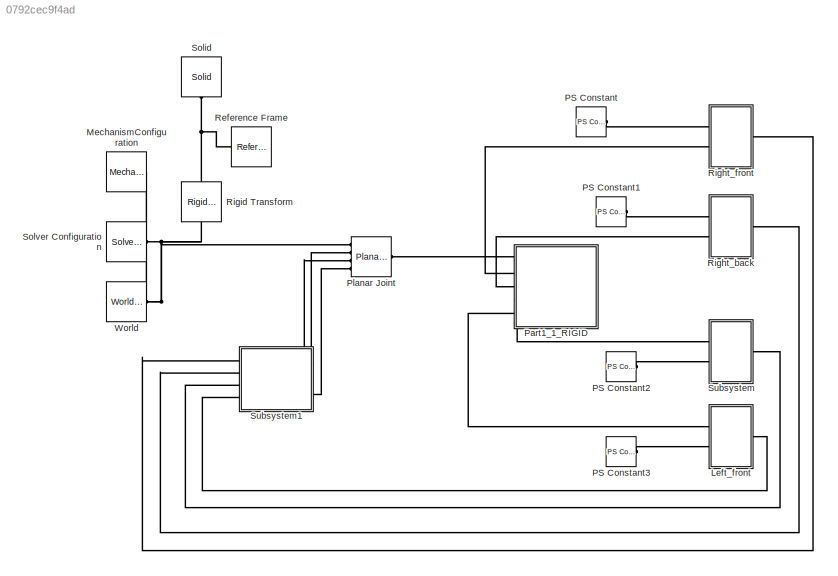
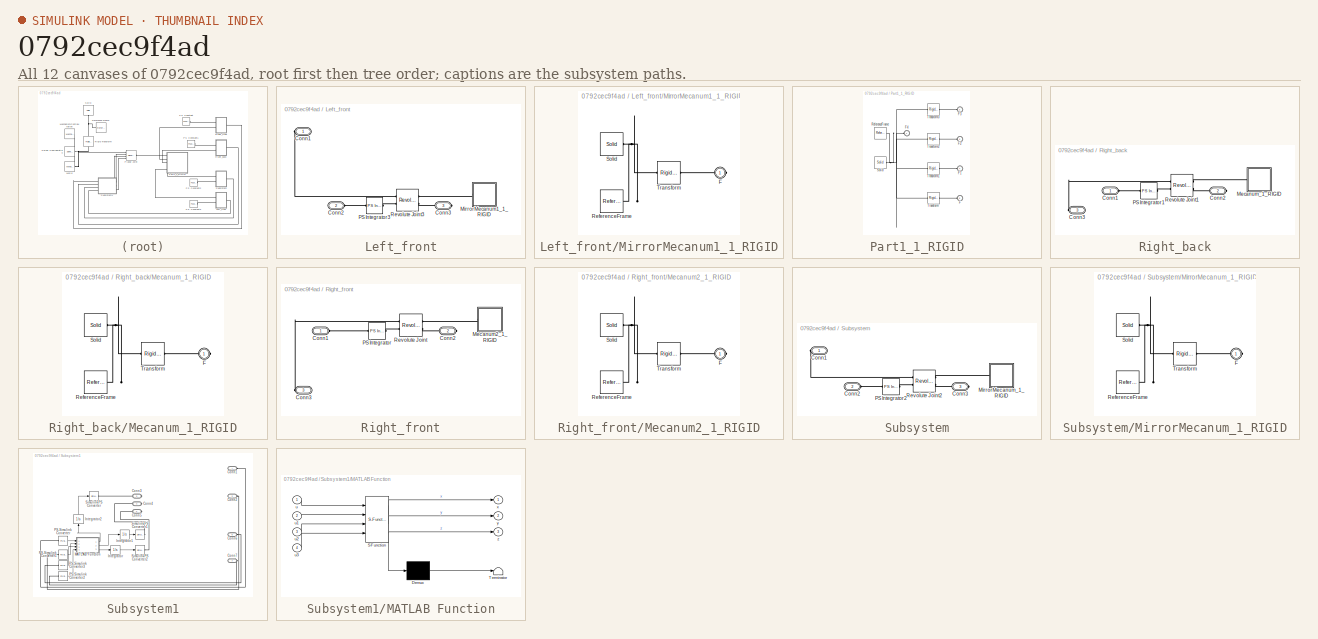
[diagram: thumbnail index - all 12 canvases of the model, root first then tree order]
MODEL slx_0792cec9f4ad
KIND model
CONFIG AbsTol = auto
CONFIG EnableMultiTasking = off
CONFIG FixedStep = auto
CONFIG MaxStep = auto
CONFIG MinStep = auto
CONFIG RelTol = 1e-3
CONFIG SampleTimeConstraint = Unconstrained
CONFIG Solver = VariableStepAuto
CONFIG SolverName = VariableStepAuto
CONFIG StartTime = 0.0
CONFIG StopTime = 10.0
WORKSPACE source: external: MATLAB File  (data not in archive)
BLOCK [SubSystem] Left_front
  Ports = [0, 0, 0, 0, 0, 2, 1]
  RequestExecContextInheritance = off
BLOCK [PMIOPort] Left_front/Conn1
  Side = Left
BLOCK [PMIOPort] Left_front/Conn2
  Port = 2
  Side = Left
BLOCK [PMIOPort] Left_front/Conn3
  Port = 3
  Side = Right
BLOCK [SubSystem] Left_front/MirrorMecanum1_1_RIGID
  Ports = [0, 0, 0, 0, 0, 0, 1]
  RequestExecContextInheritance = off
BLOCK [PMIOPort] Left_front/MirrorMecanum1_1_RIGID/F
  Side = Right
BLOCK [Reference] Left_front/MirrorMecanum1_1_RIGID/ReferenceFrame  REF=sm_lib/Frames and
Transforms/Reference
Frame
  Ports = [0, 0, 0, 0, 0, 0, 1]
  SourceBlock = sm_lib/Frames and\nTransforms/Reference\nFrame
  SourceProductBaseCode = MS
  SourceProductName = Simscape Multibody
  SourceType = Reference\nFrame
BLOCK [Reference] Left_front/MirrorMecanum1_1_RIGID/Solid  REF=sm_lib/Body Elements/Solid
  Ports = [0, 0, 0, 0, 0, 0, 1]
  SourceBlock = sm_lib/Body Elements/Solid
  SourceProductBaseCode = MS
  SourceProductName = Simscape Multibody
  SourceType = Solid
BLOCK [Reference] Left_front/MirrorMecanum1_1_RIGID/Transform  REF=sm_lib/Frames and
Transforms/Rigid
Transform
  Ports = [0, 0, 0, 0, 0, 1, 1]
  SourceBlock = sm_lib/Frames and\nTransforms/Rigid\nTransform
  SourceProductBaseCode = MS
  SourceProductName = Simscape Multibody
  SourceType = Rigid\nTransform
BLOCK [Reference] Left_front/PS Integrator3  REF=fl_ps_legacy_lib/Legacy Physical
Signals/Linear Operators/PS Integrator
  Ports = [0, 0, 0, 0, 0, 1, 1]
  SourceBlock = fl_ps_legacy_lib/Legacy Physical\nSignals/Linear Operators/PS Integrator
  SourceProductBaseCode = SS
  SourceProductName = Simscape
  SourceType = PS Integrator
BLOCK [Reference] Left_front/Revolute Joint3  REF=sm_lib/Joints/Revolute Joint
  Ports = [0, 0, 0, 0, 0, 2, 2]
  SourceBlock = sm_lib/Joints/Revolute Joint
  SourceProductBaseCode = MS
  SourceProductName = Simscape Multibody
  SourceType = Revolute Joint
BLOCK [Reference] MechanismConfiguration  REF=sm_lib/Utilities/Mechanism
Configuration
  Ports = [0, 0, 0, 0, 0, 0, 1]
  SourceBlock = sm_lib/Utilities/Mechanism\nConfiguration
  SourceProductBaseCode = MS
  SourceProductName = Simscape Multibody
  SourceType = Mechanism\nConfiguration
BLOCK [Reference] PS Constant  REF=fl_lib/Physical Signals/Sources/PS Constant
  Ports = [0, 0, 0, 0, 0, 0, 1]
  SourceBlock = fl_lib/Physical Signals/Sources/PS Constant
  SourceProductBaseCode = SS
  SourceProductName = Simscape
  SourceType = PS Constant
BLOCK [Reference] PS Constant1  REF=fl_lib/Physical Signals/Sources/PS Constant
  Ports = [0, 0, 0, 0, 0, 0, 1]
  SourceBlock = fl_lib/Physical Signals/Sources/PS Constant
  SourceProductBaseCode = SS
  SourceProductName = Simscape
  SourceType = PS Constant
BLOCK [Reference] PS Constant2  REF=fl_lib/Physical Signals/Sources/PS Constant
  Ports = [0, 0, 0, 0, 0, 0, 1]
  SourceBlock = fl_lib/Physical Signals/Sources/PS Constant
  SourceProductBaseCode = SS
  SourceProductName = Simscape
  SourceType = PS Constant
BLOCK [Reference] PS Constant3  REF=fl_lib/Physical Signals/Sources/PS Constant
  Ports = [0, 0, 0, 0, 0, 0, 1]
  SourceBlock = fl_lib/Physical Signals/Sources/PS Constant
  SourceProductBaseCode = SS
  SourceProductName = Simscape
  SourceType = PS Constant
BLOCK [SubSystem] Part1_1_RIGID
  Ports = [0, 0, 0, 0, 0, 5]
  RequestExecContextInheritance = off
BLOCK [PMIOPort] Part1_1_RIGID/F
  Port = 5
  Side = Left
BLOCK [PMIOPort] Part1_1_RIGID/F1
  Port = 4
  Side = Left
BLOCK [PMIOPort] Part1_1_RIGID/F2
  Port = 3
  Side = Left
BLOCK [PMIOPort] Part1_1_RIGID/F3
  Port = 2
  Side = Left
BLOCK [PMIOPort] Part1_1_RIGID/F4
  Side = Left
BLOCK [Reference] Part1_1_RIGID/ReferenceFrame  REF=sm_lib/Frames and
Transforms/Reference
Frame
  Ports = [0, 0, 0, 0, 0, 0, 1]
  SourceBlock = sm_lib/Frames and\nTransforms/Reference\nFrame
  SourceProductBaseCode = MS
  SourceProductName = Simscape Multibody
  SourceType = Reference\nFrame
BLOCK [Reference] Part1_1_RIGID/Solid  REF=sm_lib/Body Elements/Solid
  Ports = [0, 0, 0, 0, 0, 0, 1]
  SourceBlock = sm_lib/Body Elements/Solid
  SourceProductBaseCode = MS
  SourceProductName = Simscape Multibody
  SourceType = Solid
BLOCK [Reference] Part1_1_RIGID/Transform  REF=sm_lib/Frames and
Transforms/Rigid
Transform
  Ports = [0, 0, 0, 0, 0, 1, 1]
  SourceBlock = sm_lib/Frames and\nTransforms/Rigid\nTransform
  SourceProductBaseCode = MS
  SourceProductName = Simscape Multibody
  SourceType = Rigid\nTransform
BLOCK [Reference] Part1_1_RIGID/Transform1  REF=sm_lib/Frames and
Transforms/Rigid
Transform
  Ports = [0, 0, 0, 0, 0, 1, 1]
  SourceBlock = sm_lib/Frames and\nTransforms/Rigid\nTransform
  SourceProductBaseCode = MS
  SourceProductName = Simscape Multibody
  SourceType = Rigid\nTransform
BLOCK [Reference] Part1_1_RIGID/Transform2  REF=sm_lib/Frames and
Transforms/Rigid
Transform
  Ports = [0, 0, 0, 0, 0, 1, 1]
  SourceBlock = sm_lib/Frames and\nTransforms/Rigid\nTransform
  SourceProductBaseCode = MS
  SourceProductName = Simscape Multibody
  SourceType = Rigid\nTransform
BLOCK [Reference] Part1_1_RIGID/Transform3  REF=sm_lib/Frames and
Transforms/Rigid
Transform
  Ports = [0, 0, 0, 0, 0, 1, 1]
  SourceBlock = sm_lib/Frames and\nTransforms/Rigid\nTransform
  SourceProductBaseCode = MS
  SourceProductName = Simscape Multibody
  SourceType = Rigid\nTransform
BLOCK [Reference] Planar Joint  REF=sm_lib/Joints/Planar Joint
  Ports = [0, 0, 0, 0, 0, 4, 1]
  SourceBlock = sm_lib/Joints/Planar Joint
  SourceProductBaseCode = MS
  SourceProductName = Simscape Multibody
  SourceType = Planar Joint
BLOCK [Reference] Reference Frame  REF=sm_lib/Frames and
Transforms/Reference
Frame
  Ports = [0, 0, 0, 0, 0, 0, 1]
  SourceBlock = sm_lib/Frames and\nTransforms/Reference\nFrame
  SourceProductBaseCode = MS
  SourceProductName = Simscape Multibody
  SourceType = Reference\nFrame
BLOCK [SubSystem] Right_back
  Ports = [0, 0, 0, 0, 0, 2, 1]
  RequestExecContextInheritance = off
BLOCK [PMIOPort] Right_back/Conn1
  Side = Left
BLOCK [PMIOPort] Right_back/Conn2
  Port = 2
  Side = Right
BLOCK [PMIOPort] Right_back/Conn3
  Port = 3
  Side = Left
BLOCK [SubSystem] Right_back/Mecanum_1_RIGID
  Ports = [0, 0, 0, 0, 0, 0, 1]
  RequestExecContextInheritance = off
BLOCK [PMIOPort] Right_back/Mecanum_1_RIGID/F
  Side = Right
BLOCK [Reference] Right_back/Mecanum_1_RIGID/ReferenceFrame  REF=sm_lib/Frames and
Transforms/Reference
Frame
  Ports = [0, 0, 0, 0, 0, 0, 1]
  SourceBlock = sm_lib/Frames and\nTransforms/Reference\nFrame
  SourceProductBaseCode = MS
  SourceProductName = Simscape Multibody
  SourceType = Reference\nFrame
BLOCK [Reference] Right_back/Mecanum_1_RIGID/Solid  REF=sm_lib/Body Elements/Solid
  Ports = [0, 0, 0, 0, 0, 0, 1]
  SourceBlock = sm_lib/Body Elements/Solid
  SourceProductBaseCode = MS
  SourceProductName = Simscape Multibody
  SourceType = Solid
BLOCK [Reference] Right_back/Mecanum_1_RIGID/Transform  REF=sm_lib/Frames and
Transforms/Rigid
Transform
  Ports = [0, 0, 0, 0, 0, 1, 1]
  SourceBlock = sm_lib/Frames and\nTransforms/Rigid\nTransform
  SourceProductBaseCode = MS
  SourceProductName = Simscape Multibody
  SourceType = Rigid\nTransform
BLOCK [Reference] Right_back/PS Integrator1  REF=fl_ps_legacy_lib/Legacy Physical
Signals/Linear Operators/PS Integrator
  Ports = [0, 0, 0, 0, 0, 1, 1]
  SourceBlock = fl_ps_legacy_lib/Legacy Physical\nSignals/Linear Operators/PS Integrator
  SourceProductBaseCode = SS
  SourceProductName = Simscape
  SourceType = PS Integrator
BLOCK [Reference] Right_back/Revolute Joint1  REF=sm_lib/Joints/Revolute Joint
  Ports = [0, 0, 0, 0, 0, 2, 2]
  SourceBlock = sm_lib/Joints/Revolute Joint
  SourceProductBaseCode = MS
  SourceProductName = Simscape Multibody
  SourceType = Revolute Joint
BLOCK [SubSystem] Right_front
  Ports = [0, 0, 0, 0, 0, 2, 1]
  RequestExecContextInheritance = off
BLOCK [PMIOPort] Right_front/Conn1
  Side = Left
BLOCK [PMIOPort] Right_front/Conn2
  Port = 2
  Side = Right
BLOCK [PMIOPort] Right_front/Conn3
  Port = 3
  Side = Left
BLOCK [SubSystem] Right_front/Mecanum2_1_RIGID
  Ports = [0, 0, 0, 0, 0, 0, 1]
  RequestExecContextInheritance = off
BLOCK [PMIOPort] Right_front/Mecanum2_1_RIGID/F
  Side = Right
BLOCK [Reference] Right_front/Mecanum2_1_RIGID/ReferenceFrame  REF=sm_lib/Frames and
Transforms/Reference
Frame
  Ports = [0, 0, 0, 0, 0, 0, 1]
  SourceBlock = sm_lib/Frames and\nTransforms/Reference\nFrame
  SourceProductBaseCode = MS
  SourceProductName = Simscape Multibody
  SourceType = Reference\nFrame
BLOCK [Reference] Right_front/Mecanum2_1_RIGID/Solid  REF=sm_lib/Body Elements/Solid
  Ports = [0, 0, 0, 0, 0, 0, 1]
  SourceBlock = sm_lib/Body Elements/Solid
  SourceProductBaseCode = MS
  SourceProductName = Simscape Multibody
  SourceType = Solid
BLOCK [Reference] Right_front/Mecanum2_1_RIGID/Transform  REF=sm_lib/Frames and
Transforms/Rigid
Transform
  Ports = [0, 0, 0, 0, 0, 1, 1]
  SourceBlock = sm_lib/Frames and\nTransforms/Rigid\nTransform
  SourceProductBaseCode = MS
  SourceProductName = Simscape Multibody
  SourceType = Rigid\nTransform
BLOCK [Reference] Right_front/PS Integrator  REF=fl_ps_legacy_lib/Legacy Physical
Signals/Linear Operators/PS Integrator
  Ports = [0, 0, 0, 0, 0, 1, 1]
  SourceBlock = fl_ps_legacy_lib/Legacy Physical\nSignals/Linear Operators/PS Integrator
  SourceProductBaseCode = SS
  SourceProductName = Simscape
  SourceType = PS Integrator
BLOCK [Reference] Right_front/Revolute Joint  REF=sm_lib/Joints/Revolute Joint
  Ports = [0, 0, 0, 0, 0, 2, 2]
  SourceBlock = sm_lib/Joints/Revolute Joint
  SourceProductBaseCode = MS
  SourceProductName = Simscape Multibody
  SourceType = Revolute Joint
BLOCK [Reference] Rigid Transform  REF=sm_lib/Frames and
Transforms/Rigid
Transform
  Ports = [0, 0, 0, 0, 0, 1, 1]
  SourceBlock = sm_lib/Frames and\nTransforms/Rigid\nTransform
  SourceProductBaseCode = MS
  SourceProductName = Simscape Multibody
  SourceType = Rigid\nTransform
BLOCK [Reference] Solid  REF=sm_lib/Body Elements/Solid
  Ports = [0, 0, 0, 0, 0, 0, 1]
  SourceBlock = sm_lib/Body Elements/Solid
  SourceProductBaseCode = MS
  SourceProductName = Simscape Multibody
  SourceType = Solid
BLOCK [Reference] Solver Configuration  REF=nesl_utility/Solver
Configuration
  Ports = [0, 0, 0, 0, 0, 0, 1]
  SourceBlock = nesl_utility/Solver\nConfiguration
  SourceProductBaseCode = SS
  SourceProductName = Simscape
  SourceType = Solver\nConfiguration
BLOCK [SubSystem] Subsystem
  Ports = [0, 0, 0, 0, 0, 2, 1]
  RequestExecContextInheritance = off
BLOCK [PMIOPort] Subsystem/Conn1
  Side = Left
BLOCK [PMIOPort] Subsystem/Conn2
  Port = 2
  Side = Left
BLOCK [PMIOPort] Subsystem/Conn3
  Port = 3
  Side = Right
BLOCK [SubSystem] Subsystem/MirrorMecanum_1_RIGID
  Ports = [0, 0, 0, 0, 0, 0, 1]
  RequestExecContextInheritance = off
BLOCK [PMIOPort] Subsystem/MirrorMecanum_1_RIGID/F
  Side = Right
BLOCK [Reference] Subsystem/MirrorMecanum_1_RIGID/ReferenceFrame  REF=sm_lib/Frames and
Transforms/Reference
Frame
  Ports = [0, 0, 0, 0, 0, 0, 1]
  SourceBlock = sm_lib/Frames and\nTransforms/Reference\nFrame
  SourceProductBaseCode = MS
  SourceProductName = Simscape Multibody
  SourceType = Reference\nFrame
BLOCK [Reference] Subsystem/MirrorMecanum_1_RIGID/Solid  REF=sm_lib/Body Elements/Solid
  Ports = [0, 0, 0, 0, 0, 0, 1]
  SourceBlock = sm_lib/Body Elements/Solid
  SourceProductBaseCode = MS
  SourceProductName = Simscape Multibody
  SourceType = Solid
BLOCK [Reference] Subsystem/MirrorMecanum_1_RIGID/Transform  REF=sm_lib/Frames and
Transforms/Rigid
Transform
  Ports = [0, 0, 0, 0, 0, 1, 1]
  SourceBlock = sm_lib/Frames and\nTransforms/Rigid\nTransform
  SourceProductBaseCode = MS
  SourceProductName = Simscape Multibody
  SourceType = Rigid\nTransform
BLOCK [Reference] Subsystem/PS Integrator2  REF=fl_ps_legacy_lib/Legacy Physical
Signals/Linear Operators/PS Integrator
  Ports = [0, 0, 0, 0, 0, 1, 1]
  SourceBlock = fl_ps_legacy_lib/Legacy Physical\nSignals/Linear Operators/PS Integrator
  SourceProductBaseCode = SS
  SourceProductName = Simscape
  SourceType = PS Integrator
BLOCK [Reference] Subsystem/Revolute Joint2  REF=sm_lib/Joints/Revolute Joint
  Ports = [0, 0, 0, 0, 0, 2, 2]
  SourceBlock = sm_lib/Joints/Revolute Joint
  SourceProductBaseCode = MS
  SourceProductName = Simscape Multibody
  SourceType = Revolute Joint
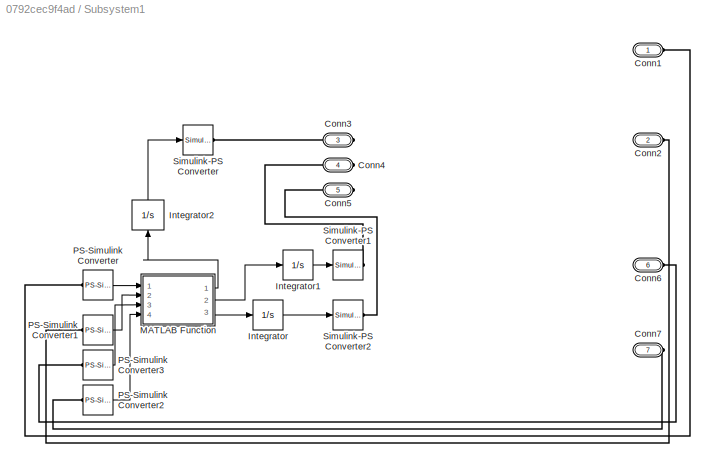
BLOCK [SubSystem] Subsystem1
  Ports = [0, 0, 0, 0, 0, 4, 3]
  RequestExecContextInheritance = off
BLOCK [PMIOPort] Subsystem1/Conn1
  Side = Left
BLOCK [PMIOPort] Subsystem1/Conn2
  Port = 2
  Side = Left
BLOCK [PMIOPort] Subsystem1/Conn3
  Port = 3
  Side = Right
BLOCK [PMIOPort] Subsystem1/Conn4
  Port = 4
  Side = Right
BLOCK [PMIOPort] Subsystem1/Conn5
  Port = 5
  Side = Right
BLOCK [PMIOPort] Subsystem1/Conn6
  Port = 6
  Side = Left
BLOCK [PMIOPort] Subsystem1/Conn7
  Port = 7
  Side = Left
BLOCK [Integrator] Subsystem1/Integrator
  Ports = [1, 1]
BLOCK [Integrator] Subsystem1/Integrator1
  Ports = [1, 1]
BLOCK [Integrator] Subsystem1/Integrator2
  Ports = [1, 1]
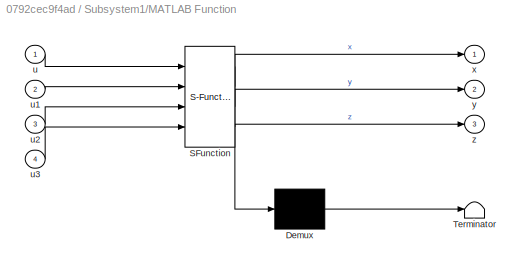
BLOCK [SubSystem] Subsystem1/MATLAB Function
  ErrorFcn = Stateflow.Translate.translate
  PermitHierarchicalResolution = ExplicitOnly
  Ports = [4, 3]
  RequestExecContextInheritance = off
  SFBlockType = MATLAB Function
  TreatAsAtomicUnit = on
BLOCK [Demux] Subsystem1/MATLAB Function/ Demux 
  Outputs = 1
  Ports = [1, 1]
BLOCK [S-Function] Subsystem1/MATLAB Function/ SFunction 
  EnableBusSupport = on
  FunctionName = sf_sfun
  PortCounts = [4 4]
  Ports = [4, 4]
  SFcnIsStateOwnerBlock = off
  SFunctionDeploymentMode = off
  Tag = Stateflow S-Function Base01 2
BLOCK [Terminator] Subsystem1/MATLAB Function/ Terminator 
BLOCK [Inport] Subsystem1/MATLAB Function/u
  IconDisplay = Port number
BLOCK [Inport] Subsystem1/MATLAB Function/u1
  IconDisplay = Port number
  Port = 2
BLOCK [Inport] Subsystem1/MATLAB Function/u2
  IconDisplay = Port number
  Port = 3
BLOCK [Inport] Subsystem1/MATLAB Function/u3
  IconDisplay = Port number
  Port = 4
BLOCK [Outport] Subsystem1/MATLAB Function/x
  IconDisplay = Port number
BLOCK [Outport] Subsystem1/MATLAB Function/y
  IconDisplay = Port number
  Port = 2
BLOCK [Outport] Subsystem1/MATLAB Function/z
  IconDisplay = Port number
  Port = 3
BLOCK [Reference] Subsystem1/PS-Simulink Converter  REF=nesl_utility/PS-Simulink
Converter
  Ports = [0, 1, 0, 0, 0, 1]
  SourceBlock = nesl_utility/PS-Simulink\nConverter
  SourceProductBaseCode = SS
  SourceProductName = Simscape
  SourceType = PS-Simulink\nConverter
BLOCK [Reference] Subsystem1/PS-Simulink Converter1  REF=nesl_utility/PS-Simulink
Converter
  Ports = [0, 1, 0, 0, 0, 1]
  SourceBlock = nesl_utility/PS-Simulink\nConverter
  SourceProductBaseCode = SS
  SourceProductName = Simscape
  SourceType = PS-Simulink\nConverter
BLOCK [Reference] Subsystem1/PS-Simulink Converter2  REF=nesl_utility/PS-Simulink
Converter
  Ports = [0, 1, 0, 0, 0, 1]
  SourceBlock = nesl_utility/PS-Simulink\nConverter
  SourceProductBaseCode = SS
  SourceProductName = Simscape
  SourceType = PS-Simulink\nConverter
BLOCK [Reference] Subsystem1/PS-Simulink Converter3  REF=nesl_utility/PS-Simulink
Converter
  Ports = [0, 1, 0, 0, 0, 1]
  SourceBlock = nesl_utility/PS-Simulink\nConverter
  SourceProductBaseCode = SS
  SourceProductName = Simscape
  SourceType = PS-Simulink\nConverter
BLOCK [Reference] Subsystem1/Simulink-PS Converter  REF=nesl_utility/Simulink-PS
Converter
  Ports = [1, 0, 0, 0, 0, 0, 1]
  SourceBlock = nesl_utility/Simulink-PS\nConverter
  SourceProductBaseCode = SS
  SourceProductName = Simscape
  SourceType = Simulink-PS\nConverter
BLOCK [Reference] Subsystem1/Simulink-PS Converter1  REF=nesl_utility/Simulink-PS
Converter
  Ports = [1, 0, 0, 0, 0, 0, 1]
  SourceBlock = nesl_utility/Simulink-PS\nConverter
  SourceProductBaseCode = SS
  SourceProductName = Simscape
  SourceType = Simulink-PS\nConverter
BLOCK [Reference] Subsystem1/Simulink-PS Converter2  REF=nesl_utility/Simulink-PS
Converter
  Ports = [1, 0, 0, 0, 0, 0, 1]
  SourceBlock = nesl_utility/Simulink-PS\nConverter
  SourceProductBaseCode = SS
  SourceProductName = Simscape
  SourceType = Simulink-PS\nConverter
BLOCK [Reference] World  REF=sm_lib/Frames and
Transforms/World Frame
  Ports = [0, 0, 0, 0, 0, 0, 1]
  SourceBlock = sm_lib/Frames and\nTransforms/World Frame
  SourceProductBaseCode = MS
  SourceProductName = Simscape Multibody
  SourceType = World Frame
LINE Subsystem1/Integrator1:1 -> Subsystem1/Simulink-PS Converter1:1
LINE Subsystem1/Integrator2:1 -> Subsystem1/Simulink-PS Converter:1
LINE Subsystem1/Integrator:1 -> Subsystem1/Simulink-PS Converter2:1
LINE Subsystem1/MATLAB Function:1 -> Subsystem1/Integrator2:1
LINE Subsystem1/MATLAB Function:2 -> Subsystem1/Integrator1:1
LINE Subsystem1/MATLAB Function:3 -> Subsystem1/Integrator:1
LINE Subsystem1/PS-Simulink Converter1:1 -> Subsystem1/MATLAB Function:2
LINE Subsystem1/PS-Simulink Converter2:1 -> Subsystem1/MATLAB Function:4
LINE Subsystem1/PS-Simulink Converter3:1 -> Subsystem1/MATLAB Function:3
LINE Subsystem1/PS-Simulink Converter:1 -> Subsystem1/MATLAB Function:1
PLINE Left_front/Conn1:RConn1 -- Left_front/Revolute Joint3:LConn1
PLINE Left_front/Conn2:RConn1 -- Left_front/PS Integrator3:LConn1
PLINE Left_front/Conn3:RConn1 -- Left_front/Revolute Joint3:RConn2
PLINE Left_front/MirrorMecanum1_1_RIGID/F:RConn1 -- Left_front/MirrorMecanum1_1_RIGID/Transform:RConn1
PNET net1: Left_front/MirrorMecanum1_1_RIGID/ReferenceFrame:RConn1 -- Left_front/MirrorMecanum1_1_RIGID/Solid:RConn1 -- Left_front/MirrorMecanum1_1_RIGID/Transform:LConn1
PLINE Left_front/MirrorMecanum1_1_RIGID:RConn1 -- Left_front/Revolute Joint3:RConn1
PLINE Left_front/PS Integrator3:RConn1 -- Left_front/Revolute Joint3:LConn2
PLINE Left_front:LConn1 -- Part1_1_RIGID:LConn5
PLINE Left_front:LConn2 -- PS Constant3:RConn1
PLINE Left_front:RConn1 -- Subsystem1:LConn4
PNET net2: MechanismConfiguration:RConn1 -- Planar Joint:LConn1 -- Rigid Transform:RConn1 -- Solver Configuration:RConn1 -- World:RConn1
PLINE PS Constant1:RConn1 -- Right_back:LConn1
PLINE PS Constant2:RConn1 -- Subsystem:LConn2
PLINE PS Constant:RConn1 -- Right_front:LConn1
PLINE Part1_1_RIGID/F1:RConn1 -- Part1_1_RIGID/Transform1:RConn1
PLINE Part1_1_RIGID/F2:RConn1 -- Part1_1_RIGID/Transform2:RConn1
PLINE Part1_1_RIGID/F3:RConn1 -- Part1_1_RIGID/Transform3:RConn1
PNET net3: Part1_1_RIGID/F4:RConn1 -- Part1_1_RIGID/ReferenceFrame:RConn1 -- Part1_1_RIGID/Solid:RConn1 -- Part1_1_RIGID/Transform1:LConn1 -- Part1_1_RIGID/Transform2:LConn1 -- Part1_1_RIGID/Transform3:LConn1 -- Part1_1_RIGID/Transform:LConn1
PLINE Part1_1_RIGID/F:RConn1 -- Part1_1_RIGID/Transform:RConn1
PLINE Part1_1_RIGID:LConn1 -- Planar Joint:RConn1
PLINE Part1_1_RIGID:LConn2 -- Right_front:LConn2
PLINE Part1_1_RIGID:LConn3 -- Right_back:LConn2
PLINE Part1_1_RIGID:LConn4 -- Subsystem:LConn1
PLINE Planar Joint:LConn2 -- Subsystem1:RConn1
PLINE Planar Joint:LConn3 -- Subsystem1:RConn2
PLINE Planar Joint:LConn4 -- Subsystem1:RConn3
PNET net4: Reference Frame:RConn1 -- Rigid Transform:LConn1 -- Solid:RConn1
PLINE Right_back/Conn1:RConn1 -- Right_back/PS Integrator1:LConn1
PLINE Right_back/Conn2:RConn1 -- Right_back/Revolute Joint1:RConn2
PLINE Right_back/Conn3:RConn1 -- Right_back/Revolute Joint1:LConn1
PLINE Right_back/Mecanum_1_RIGID/F:RConn1 -- Right_back/Mecanum_1_RIGID/Transform:RConn1
PNET net5: Right_back/Mecanum_1_RIGID/ReferenceFrame:RConn1 -- Right_back/Mecanum_1_RIGID/Solid:RConn1 -- Right_back/Mecanum_1_RIGID/Transform:LConn1
PLINE Right_back/Mecanum_1_RIGID:RConn1 -- Right_back/Revolute Joint1:RConn1
PLINE Right_back/PS Integrator1:RConn1 -- Right_back/Revolute Joint1:LConn2
PLINE Right_back:RConn1 -- Subsystem1:LConn2
PLINE Right_front/Conn1:RConn1 -- Right_front/PS Integrator:LConn1
PLINE Right_front/Conn2:RConn1 -- Right_front/Revolute Joint:RConn2
PLINE Right_front/Conn3:RConn1 -- Right_front/Revolute Joint:LConn1
PLINE Right_front/Mecanum2_1_RIGID/F:RConn1 -- Right_front/Mecanum2_1_RIGID/Transform:RConn1
PNET net6: Right_front/Mecanum2_1_RIGID/ReferenceFrame:RConn1 -- Right_front/Mecanum2_1_RIGID/Solid:RConn1 -- Right_front/Mecanum2_1_RIGID/Transform:LConn1
PLINE Right_front/Mecanum2_1_RIGID:RConn1 -- Right_front/Revolute Joint:RConn1
PLINE Right_front/PS Integrator:RConn1 -- Right_front/Revolute Joint:LConn2
PLINE Right_front:RConn1 -- Subsystem1:LConn1
PLINE Subsystem/Conn1:RConn1 -- Subsystem/Revolute Joint2:LConn1
PLINE Subsystem/Conn2:RConn1 -- Subsystem/PS Integrator2:LConn1
PLINE Subsystem/Conn3:RConn1 -- Subsystem/Revolute Joint2:RConn2
PLINE Subsystem/MirrorMecanum_1_RIGID/F:RConn1 -- Subsystem/MirrorMecanum_1_RIGID/Transform:RConn1
PNET net7: Subsystem/MirrorMecanum_1_RIGID/ReferenceFrame:RConn1 -- Subsystem/MirrorMecanum_1_RIGID/Solid:RConn1 -- Subsystem/MirrorMecanum_1_RIGID/Transform:LConn1
PLINE Subsystem/MirrorMecanum_1_RIGID:RConn1 -- Subsystem/Revolute Joint2:RConn1
PLINE Subsystem/PS Integrator2:RConn1 -- Subsystem/Revolute Joint2:LConn2
PLINE Subsystem1/Conn1:RConn1 -- Subsystem1/PS-Simulink Converter:LConn1
PLINE Subsystem1/Conn2:RConn1 -- Subsystem1/PS-Simulink Converter1:LConn1
PLINE Subsystem1/Conn3:RConn1 -- Subsystem1/Simulink-PS Converter:RConn1
PLINE Subsystem1/Conn4:RConn1 -- Subsystem1/Simulink-PS Converter1:RConn1
PLINE Subsystem1/Conn5:RConn1 -- Subsystem1/Simulink-PS Converter2:RConn1
PLINE Subsystem1/Conn6:RConn1 -- Subsystem1/PS-Simulink Converter3:LConn1
PLINE Subsystem1/Conn7:RConn1 -- Subsystem1/PS-Simulink Converter2:LConn1
PLINE Subsystem1:LConn3 -- Subsystem:RConn1
note: PNET lines group multi-terminal physical nets as a canonical sorted terminal list (undirected conserving connections); 2-terminal nets keep the pairwise PLINE form
CHART Subsystem1/MATLAB Function states=1 transitions=1
  STATE_LABEL 'eML_blk_kernel()'
  STATE_LABEL 'SCRIPT:\nfunction [x,y,z] = fcn(u,u1,u2,u3)\nv =(u+u1+u2-u3)/4;\nz=((u+u1)-(u2-u3))/35.4;\n%Front x=v*sin(z);y=v*cos(z);\n%Back x=-v*sin(z);y=-v*cos(z);\n%Right x=v*cos(z);y=v*sin(z);\n%left x=-v*cos(z);y=-v*sin(z);\n%Rotation \nx=0;y=0;\n'
